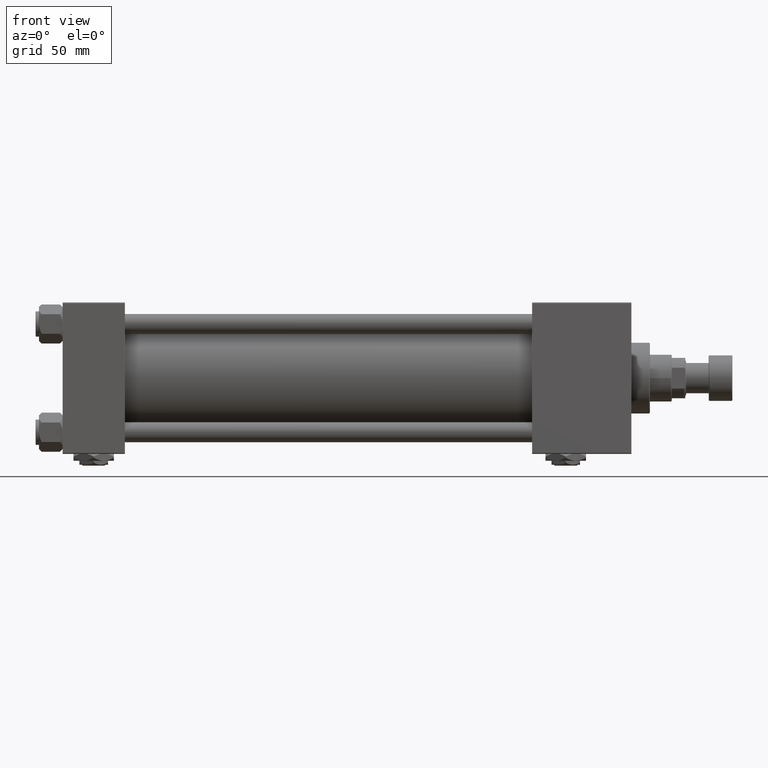
[diagram: clean part render]
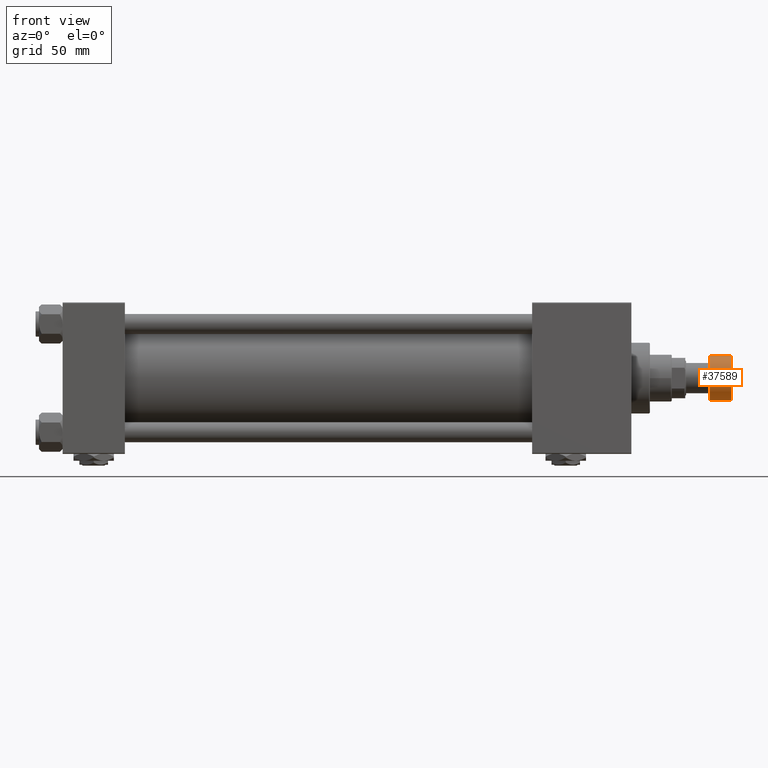
[diagram: same view with one face highlighted and labeled with its STEP entity id]
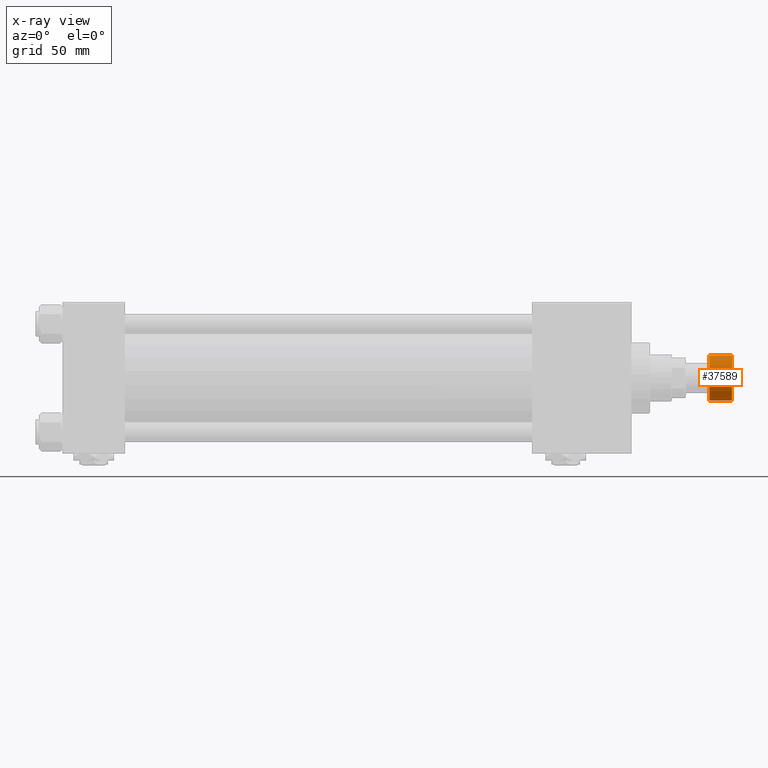
[diagram: x-ray of the same camera — body ghosted, the highlighted face saturated]
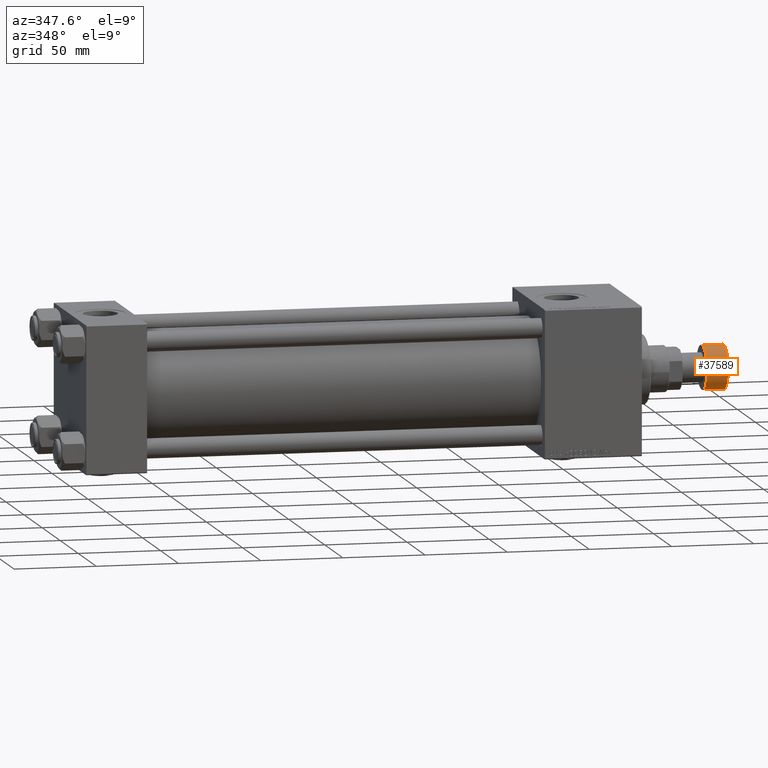
[diagram: same view with one face highlighted and labeled with its STEP entity id]
A machine part, front view. The second image highlights one B-rep face of the part: STEP entity #37589.
The next image is the same camera in x-ray: the body ghosted, the highlighted face saturated — about 0% of this face is hidden behind the body in this view.
A second angle (auxiliary view) of the same face is appended — the face is thin or edge-on in the first view.
In plain terms, the highlighted cylindrical surface (edge-blend (fillet) strip) has radius 13.5 mm, axis along (1, 0, 0).
Its self-contained STEP definition (entity closure, byte-faithful):
#1730 = ORIENTED_EDGE ( 'NONE', *, *, #45651, .T. ) ;
#2897 = CARTESIAN_POINT ( 'NONE',  ( 13.50000000000000000, 0.000000000000000000, -0.5000000000000004441 ) ) ;
#2915 = LINE ( 'NONE', #19199, #8455 ) ;
#3201 = FACE_OUTER_BOUND ( 'NONE', #7993, .T. ) ;
#3779 = EDGE_CURVE ( 'NONE', #40219, #8157, #37414, .T. ) ;
#4276 = LINE ( 'NONE', #4536, #8524 ) ;
#4536 = CARTESIAN_POINT ( 'NONE',  ( -13.50000000000000000, 1.653273178848926867E-15, -14.00000000000000000 ) ) ;
#4627 = EDGE_CURVE ( 'NONE', #8489, #8157, #4276, .T. ) ;
#6569 = DIRECTION ( 'NONE',  ( -0.000000000000000000, -0.000000000000000000, -1.000000000000000000 ) ) ;
#7993 = EDGE_LOOP ( 'NONE', ( #30897, #1730, #40071, #16772 ) ) ;
#8157 = VERTEX_POINT ( 'NONE', #25602 ) ;
#8455 = VECTOR ( 'NONE', #16790, 1000.000000000000000 ) ;
#8489 = VERTEX_POINT ( 'NONE', #50875 ) ;
#8524 = VECTOR ( 'NONE', #41073, 1000.000000000000000 ) ;
#11330 = DIRECTION ( 'NONE',  ( 1.000000000000000000, 0.000000000000000000, 0.000000000000000000 ) ) ;
#16772 = ORIENTED_EDGE ( 'NONE', *, *, #3779, .T. ) ;
#16790 = DIRECTION ( 'NONE',  ( 0.000000000000000000, 0.000000000000000000, 1.000000000000000000 ) ) ;
#18721 = DIRECTION ( 'NONE',  ( 1.000000000000000000, 0.000000000000000000, 0.000000000000000000 ) ) ;
#19199 = CARTESIAN_POINT ( 'NONE',  ( 13.50000000000000000, 0.000000000000000000, -14.00000000000000000 ) ) ;
#19330 = DIRECTION ( 'NONE',  ( 0.000000000000000000, 0.000000000000000000, 1.000000000000000000 ) ) ;
#19705 = CARTESIAN_POINT ( 'NONE',  ( 13.50000000000000000, 0.000000000000000000, -13.50000000000000000 ) ) ;
#24230 = AXIS2_PLACEMENT_3D ( 'NONE', #35217, #38976, #18721 ) ;
#25602 = CARTESIAN_POINT ( 'NONE',  ( -13.50000000000000000, 1.653273178848926867E-15, -0.5000000000000004441 ) ) ;
#26255 = EDGE_CURVE ( 'NONE', #51292, #40219, #2915, .T. ) ;
#30381 = CIRCLE ( 'NONE', #45711, 13.50000000000000000 ) ;
#30419 = CYLINDRICAL_SURFACE ( 'NONE', #24230, 13.50000000000000000 ) ;
#30897 = ORIENTED_EDGE ( 'NONE', *, *, #4627, .F. ) ;
#34583 = DIRECTION ( 'NONE',  ( 1.000000000000000000, 0.000000000000000000, 0.000000000000000000 ) ) ;
#35217 = CARTESIAN_POINT ( 'NONE',  ( 0.000000000000000000, 0.000000000000000000, -14.00000000000000000 ) ) ;
#37414 = CIRCLE ( 'NONE', #44226, 13.50000000000000000 ) ;
#37589 = ADVANCED_FACE ( 'NONE', ( #3201 ), #30419, .T. ) ;
#38976 = DIRECTION ( 'NONE',  ( 0.000000000000000000, 0.000000000000000000, 1.000000000000000000 ) ) ;
#40071 = ORIENTED_EDGE ( 'NONE', *, *, #26255, .T. ) ;
#40219 = VERTEX_POINT ( 'NONE', #2897 ) ;
#41073 = DIRECTION ( 'NONE',  ( 0.000000000000000000, 0.000000000000000000, 1.000000000000000000 ) ) ;
#44226 = AXIS2_PLACEMENT_3D ( 'NONE', #46852, #6569, #34583 ) ;
#45651 = EDGE_CURVE ( 'NONE', #8489, #51292, #30381, .T. ) ;
#45711 = AXIS2_PLACEMENT_3D ( 'NONE', #51606, #19330, #11330 ) ;
#46852 = CARTESIAN_POINT ( 'NONE',  ( 0.000000000000000000, 0.000000000000000000, -0.5000000000000004441 ) ) ;
#50875 = CARTESIAN_POINT ( 'NONE',  ( -13.50000000000000000, 1.653273178848926867E-15, -13.50000000000000000 ) ) ;
#51292 = VERTEX_POINT ( 'NONE', #19705 ) ;
#51606 = CARTESIAN_POINT ( 'NONE',  ( 0.000000000000000000, 0.000000000000000000, -13.50000000000000000 ) ) ;